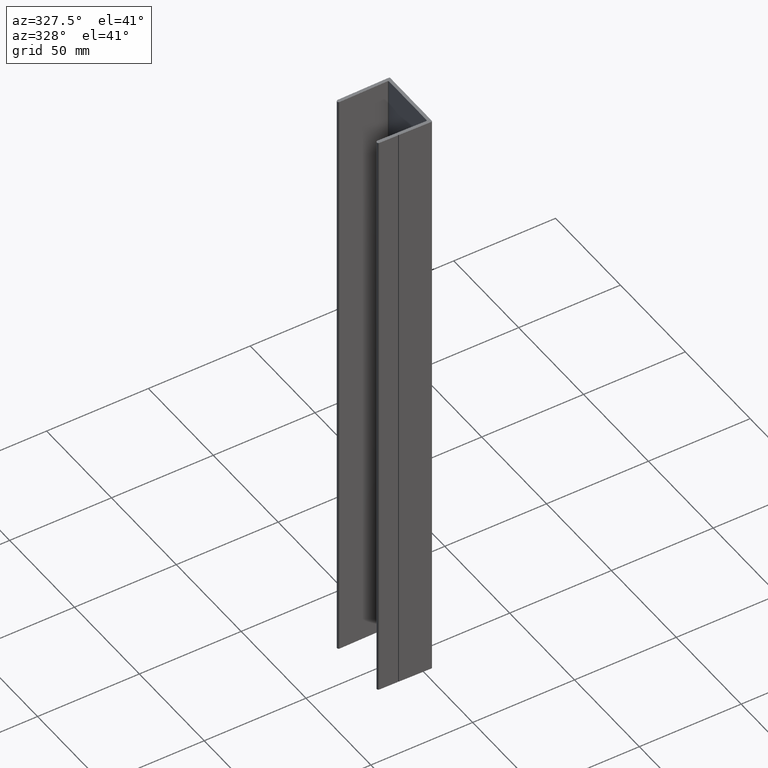
[diagram: clean part render]
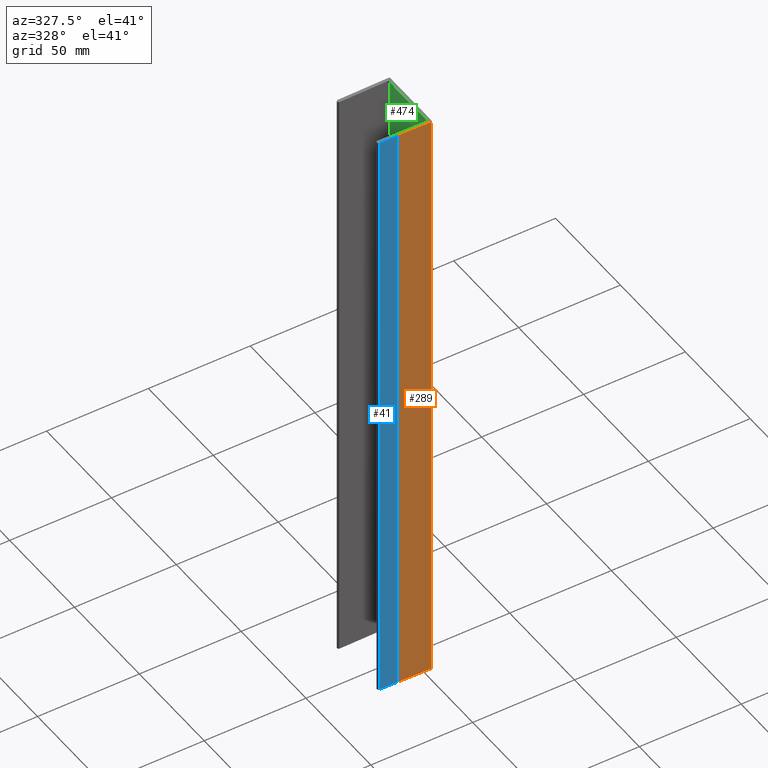
[diagram: same view with three faces highlighted in distinct colors, each labeled with its STEP entity id]
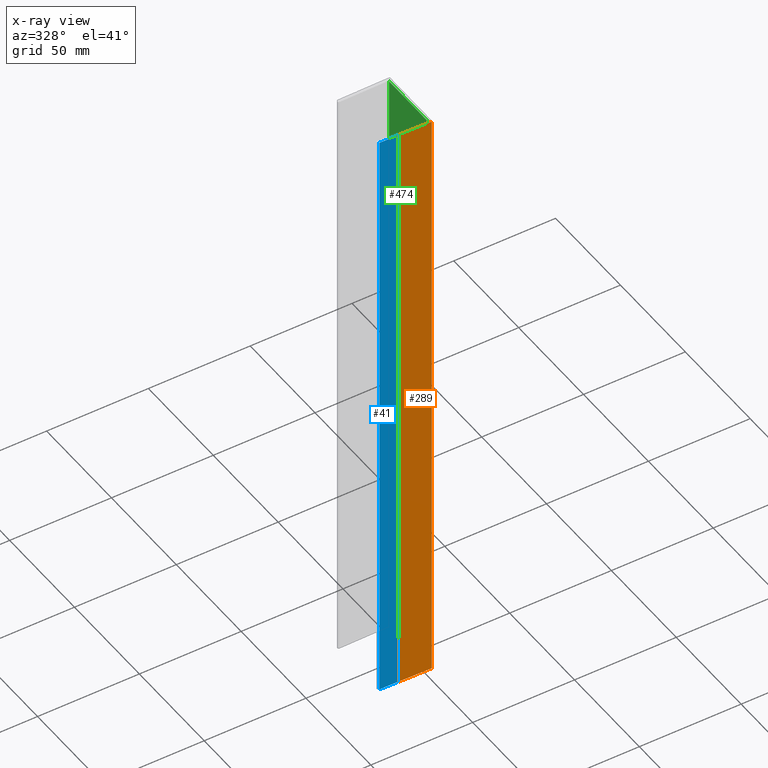
[diagram: x-ray of the same camera — body ghosted, the three highlighted faces saturated]
A machine part, auxiliary view with three faces highlighted in distinct colors.
The next image is the same camera in x-ray (body ghosted, the three faces saturated) — at least one of them is partly hidden behind the body in this view.
Their STEP definitions:

[orange] entity #289 — the highlighted planar face has unit normal (0.016, 0.9999, -0).
#2 = DIRECTION ( 'NONE',  ( -0.0000000000000000000, -0.0000000000000000000, -1.000000000000000000 ) ) ;
#7 = LINE ( 'NONE', #98, #314 ) ;
#43 = DIRECTION ( 'NONE',  ( -0.9998720245707583000, 0.01599795239313217500, 0.0000000000000000000 ) ) ;
#72 = ORIENTED_EDGE ( 'NONE', *, *, #852, .F. ) ;
#83 = ORIENTED_EDGE ( 'NONE', *, *, #915, .F. ) ;
#98 = CARTESIAN_POINT ( 'NONE',  ( -14.78087924239067300, -16.26391553212179300, -150.0009999999999800 ) ) ;
#108 = VECTOR ( 'NONE', #2, 1000.000000000000000 ) ;
#123 = CARTESIAN_POINT ( 'NONE',  ( 1.092001023803435400, -16.51788161638085100, -150.0000000000000000 ) ) ;
#129 = CARTESIAN_POINT ( 'NONE',  ( -14.78087924239067300, -16.26391553212179300, -150.0000000000000000 ) ) ;
#153 = DIRECTION ( 'NONE',  ( -0.0000000000000000000, -0.0000000000000000000, 1.000000000000000000 ) ) ;
#173 = ORIENTED_EDGE ( 'NONE', *, *, #917, .T. ) ;
#184 = LINE ( 'NONE', #581, #687 ) ;
#236 = VERTEX_POINT ( 'NONE', #123 ) ;
#289 = ADVANCED_FACE ( 'NONE', ( #365 ), #640, .F. ) ;
#291 = CARTESIAN_POINT ( 'NONE',  ( -14.78087924239067300, -16.26391553212179300, 150.0000000000000000 ) ) ;
#314 = VECTOR ( 'NONE', #153, 1000.000000000000000 ) ;
#329 = CARTESIAN_POINT ( 'NONE',  ( -24.22570238034338900, -16.11279836191450000, -150.0000000000000000 ) ) ;
#352 = VERTEX_POINT ( 'NONE', #291 ) ;
#365 = FACE_OUTER_BOUND ( 'NONE', #805, .T. ) ;
#435 = LINE ( 'NONE', #502, #108 ) ;
#494 = ORIENTED_EDGE ( 'NONE', *, *, #914, .F. ) ;
#499 = VERTEX_POINT ( 'NONE', #129 ) ;
#500 = CARTESIAN_POINT ( 'NONE',  ( -24.22570238034338900, -16.11279836191450000, 150.0000000000000000 ) ) ;
#502 = CARTESIAN_POINT ( 'NONE',  ( 1.092001023803435400, -16.51788161638085100, 150.0000000000000000 ) ) ;
#506 = LINE ( 'NONE', #329, #897 ) ;
#521 = DIRECTION ( 'NONE',  ( 0.9998720245707584100, -0.01599795239312992000, 0.0000000000000000000 ) ) ;
#581 = CARTESIAN_POINT ( 'NONE',  ( 0.0000000000000000000, -16.50040959999999400, 150.0000000000000000 ) ) ;
#587 = DIRECTION ( 'NONE',  ( 0.9998720245707583000, -0.01599795239313217500, 0.0000000000000000000 ) ) ;
#640 = PLANE ( 'NONE',  #742 ) ;
#687 = VECTOR ( 'NONE', #521, 999.9999999999998900 ) ;
#697 = DIRECTION ( 'NONE',  ( 0.01599795239313217500, 0.9998720245707583000, -0.0000000000000000000 ) ) ;
#742 = AXIS2_PLACEMENT_3D ( 'NONE', #500, #697, #43 ) ;
#805 = EDGE_LOOP ( 'NONE', ( #494, #83, #173, #72 ) ) ;
#809 = VERTEX_POINT ( 'NONE', #881 ) ;
#852 = EDGE_CURVE ( 'NONE', #809, #236, #435, .T. ) ;
#881 = CARTESIAN_POINT ( 'NONE',  ( 1.092001023803435400, -16.51788161638085100, 150.0000000000000000 ) ) ;
#897 = VECTOR ( 'NONE', #587, 1000.000000000000000 ) ;
#914 = EDGE_CURVE ( 'NONE', #352, #809, #184, .T. ) ;
#915 = EDGE_CURVE ( 'NONE', #499, #352, #7, .T. ) ;
#917 = EDGE_CURVE ( 'NONE', #499, #236, #506, .T. ) ;

[blue] entity #41 — the highlighted planar face has unit normal (0.016, 0.9999, -0).
#41 = ADVANCED_FACE ( 'NONE', ( #471 ), #675, .F. ) ;
#67 = VECTOR ( 'NONE', #575, 1000.000000000000000 ) ;
#121 = CARTESIAN_POINT ( 'NONE',  ( -15.28087924239067300, -16.25591553212179000, -150.0009999999999800 ) ) ;
#137 = CARTESIAN_POINT ( 'NONE',  ( -24.22570238034338900, -16.11279836191450000, 150.0000000000000000 ) ) ;
#156 = VECTOR ( 'NONE', #430, 1000.000000000000000 ) ;
#158 = DIRECTION ( 'NONE',  ( 0.01599795239313217500, 0.9998720245707583000, -0.0000000000000000000 ) ) ;
#185 = VERTEX_POINT ( 'NONE', #425 ) ;
#241 = CARTESIAN_POINT ( 'NONE',  ( 0.0000000000000000000, -16.50040959999999400, 150.0000000000000000 ) ) ;
#257 = EDGE_CURVE ( 'NONE', #536, #708, #386, .T. ) ;
#305 = ORIENTED_EDGE ( 'NONE', *, *, #837, .T. ) ;
#308 = ORIENTED_EDGE ( 'NONE', *, *, #257, .T. ) ;
#312 = LINE ( 'NONE', #121, #469 ) ;
#318 = CARTESIAN_POINT ( 'NONE',  ( -24.22570238034338900, -16.11279836191450000, -150.0000000000000000 ) ) ;
#349 = ORIENTED_EDGE ( 'NONE', *, *, #841, .F. ) ;
#386 = LINE ( 'NONE', #137, #67 ) ;
#402 = CARTESIAN_POINT ( 'NONE',  ( -24.22570238034338900, -16.11279836191450000, 150.0000000000000000 ) ) ;
#425 = CARTESIAN_POINT ( 'NONE',  ( -15.28087924239067300, -16.25591553212174000, -150.0000000000000000 ) ) ;
#430 = DIRECTION ( 'NONE',  ( 0.9998720245707583000, -0.01599795239313217500, 0.0000000000000000000 ) ) ;
#469 = VECTOR ( 'NONE', #616, 1000.000000000000000 ) ;
#471 = FACE_OUTER_BOUND ( 'NONE', #493, .T. ) ;
#476 = AXIS2_PLACEMENT_3D ( 'NONE', #402, #158, #588 ) ;
#493 = EDGE_LOOP ( 'NONE', ( #551, #305, #349, #308 ) ) ;
#504 = LINE ( 'NONE', #712, #156 ) ;
#536 = VERTEX_POINT ( 'NONE', #804 ) ;
#551 = ORIENTED_EDGE ( 'NONE', *, *, #834, .T. ) ;
#575 = DIRECTION ( 'NONE',  ( -0.0000000000000000000, -0.0000000000000000000, -1.000000000000000000 ) ) ;
#588 = DIRECTION ( 'NONE',  ( -0.9998720245707583000, 0.01599795239313217500, 0.0000000000000000000 ) ) ;
#613 = DIRECTION ( 'NONE',  ( 0.9998720245707584100, -0.01599795239312992000, 0.0000000000000000000 ) ) ;
#616 = DIRECTION ( 'NONE',  ( -0.0000000000000000000, -0.0000000000000000000, 1.000000000000000000 ) ) ;
#650 = VECTOR ( 'NONE', #613, 999.9999999999998900 ) ;
#675 = PLANE ( 'NONE',  #476 ) ;
#684 = LINE ( 'NONE', #241, #650 ) ;
#708 = VERTEX_POINT ( 'NONE', #318 ) ;
#712 = CARTESIAN_POINT ( 'NONE',  ( -24.22570238034338900, -16.11279836191450000, -150.0000000000000000 ) ) ;
#804 = CARTESIAN_POINT ( 'NONE',  ( -24.22570238034338900, -16.11279836191450000, 150.0000000000000000 ) ) ;
#834 = EDGE_CURVE ( 'NONE', #708, #185, #504, .T. ) ;
#835 = VERTEX_POINT ( 'NONE', #892 ) ;
#837 = EDGE_CURVE ( 'NONE', #185, #835, #312, .T. ) ;
#841 = EDGE_CURVE ( 'NONE', #536, #835, #684, .T. ) ;
#892 = CARTESIAN_POINT ( 'NONE',  ( -15.28087924239067300, -16.25591553212179000, 150.0000000000000000 ) ) ;

[green] entity #474 — the highlighted planar face has unit normal (1, 0, -0).
#1 = CARTESIAN_POINT ( 'NONE',  ( -2.168404344971008900E-016, -14.39193600409547700, 150.0000000000000000 ) ) ;
#18 = DIRECTION ( 'NONE',  ( 1.836970198721029900E-016, -1.000000000000000000, -0.0000000000000000000 ) ) ;
#45 = FACE_OUTER_BOUND ( 'NONE', #566, .T. ) ;
#115 = LINE ( 'NONE', #468, #583 ) ;
#134 = ORIENTED_EDGE ( 'NONE', *, *, #793, .T. ) ;
#146 = DIRECTION ( 'NONE',  ( -0.0000000000000000000, -0.0000000000000000000, -1.000000000000000000 ) ) ;
#148 = CARTESIAN_POINT ( 'NONE',  ( -2.168404344971008900E-016, -14.39193600409547700, 150.0000000000000000 ) ) ;
#169 = VERTEX_POINT ( 'NONE', #172 ) ;
#172 = CARTESIAN_POINT ( 'NONE',  ( -2.168404344971008900E-016, -14.39193600409547700, -150.0000000000000000 ) ) ;
#230 = LINE ( 'NONE', #1, #538 ) ;
#253 = LINE ( 'NONE', #455, #803 ) ;
#259 = EDGE_CURVE ( 'NONE', #727, #169, #230, .T. ) ;
#272 = CARTESIAN_POINT ( 'NONE',  ( 6.036150118630527200E-017, -14.39193600409547700, 150.0000000000000000 ) ) ;
#277 = LINE ( 'NONE', #272, #406 ) ;
#292 = VERTEX_POINT ( 'NONE', #561 ) ;
#306 = DIRECTION ( 'NONE',  ( -1.836970198721029900E-016, 1.000000000000000000, 0.0000000000000000000 ) ) ;
#322 = DIRECTION ( 'NONE',  ( 1.836970198721029900E-016, -1.000000000000000000, -0.0000000000000000000 ) ) ;
#390 = ORIENTED_EDGE ( 'NONE', *, *, #893, .F. ) ;
#406 = VECTOR ( 'NONE', #322, 1000.000000000000000 ) ;
#413 = DIRECTION ( 'NONE',  ( -0.0000000000000000000, -0.0000000000000000000, -1.000000000000000000 ) ) ;
#431 = VERTEX_POINT ( 'NONE', #761 ) ;
#455 = CARTESIAN_POINT ( 'NONE',  ( 6.036150118630527200E-017, -14.39193600409547700, -150.0000000000000000 ) ) ;
#468 = CARTESIAN_POINT ( 'NONE',  ( -5.227150007098417100E-015, 14.39193600409547700, 150.0000000000000000 ) ) ;
#474 = ADVANCED_FACE ( 'NONE', ( #45 ), #911, .F. ) ;
#485 = ORIENTED_EDGE ( 'NONE', *, *, #884, .T. ) ;
#495 = DIRECTION ( 'NONE',  ( 1.000000000000000000, 1.836970198721029900E-016, -0.0000000000000000000 ) ) ;
#498 = CARTESIAN_POINT ( 'NONE',  ( 6.036150118630527200E-017, -14.39193600409547700, 150.0000000000000000 ) ) ;
#533 = ORIENTED_EDGE ( 'NONE', *, *, #259, .F. ) ;
#538 = VECTOR ( 'NONE', #146, 1000.000000000000000 ) ;
#561 = CARTESIAN_POINT ( 'NONE',  ( -5.227150007098417100E-015, 14.39193600409547700, 150.0000000000000000 ) ) ;
#566 = EDGE_LOOP ( 'NONE', ( #485, #533, #390, #134 ) ) ;
#583 = VECTOR ( 'NONE', #413, 1000.000000000000000 ) ;
#714 = AXIS2_PLACEMENT_3D ( 'NONE', #498, #495, #306 ) ;
#727 = VERTEX_POINT ( 'NONE', #148 ) ;
#761 = CARTESIAN_POINT ( 'NONE',  ( -5.227150007098417100E-015, 14.39193600409547700, -150.0000000000000000 ) ) ;
#793 = EDGE_CURVE ( 'NONE', #292, #431, #115, .T. ) ;
#803 = VECTOR ( 'NONE', #18, 1000.000000000000000 ) ;
#884 = EDGE_CURVE ( 'NONE', #431, #169, #253, .T. ) ;
#893 = EDGE_CURVE ( 'NONE', #292, #727, #277, .T. ) ;
#911 = PLANE ( 'NONE',  #714 ) ;